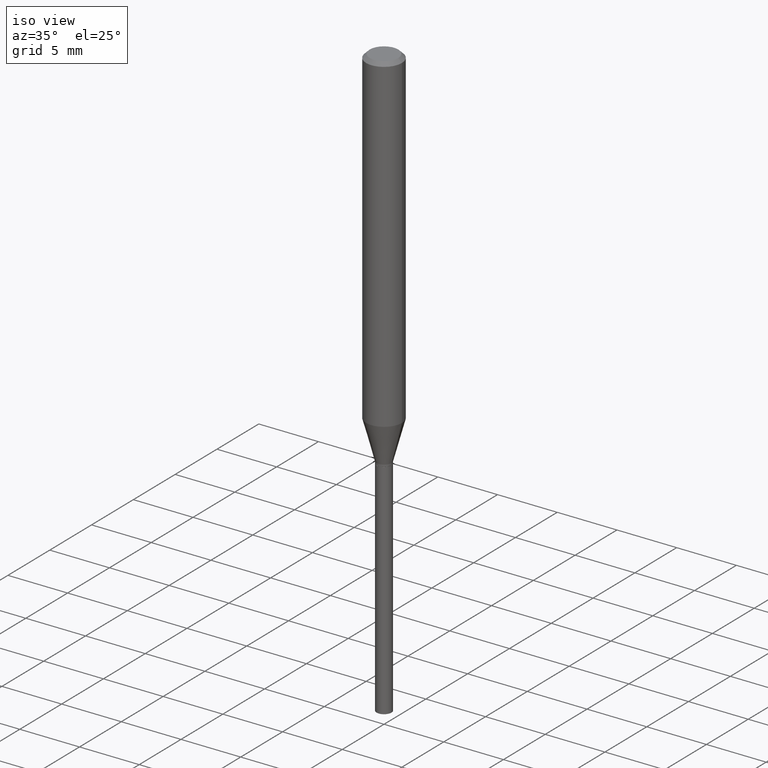
[diagram: clean part render]
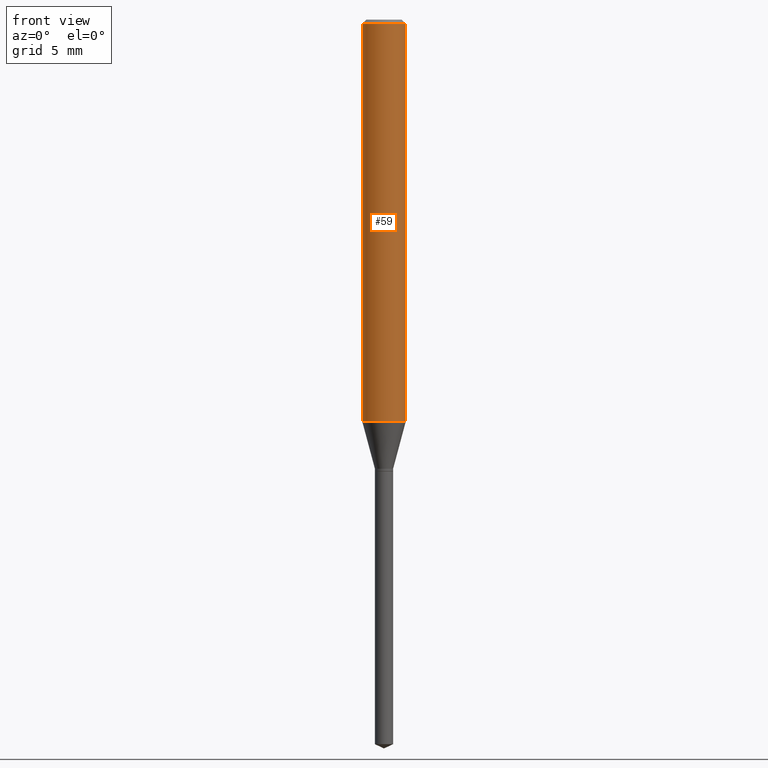
[diagram: tour spotlight — one face highlighted and labeled with its STEP entity id]
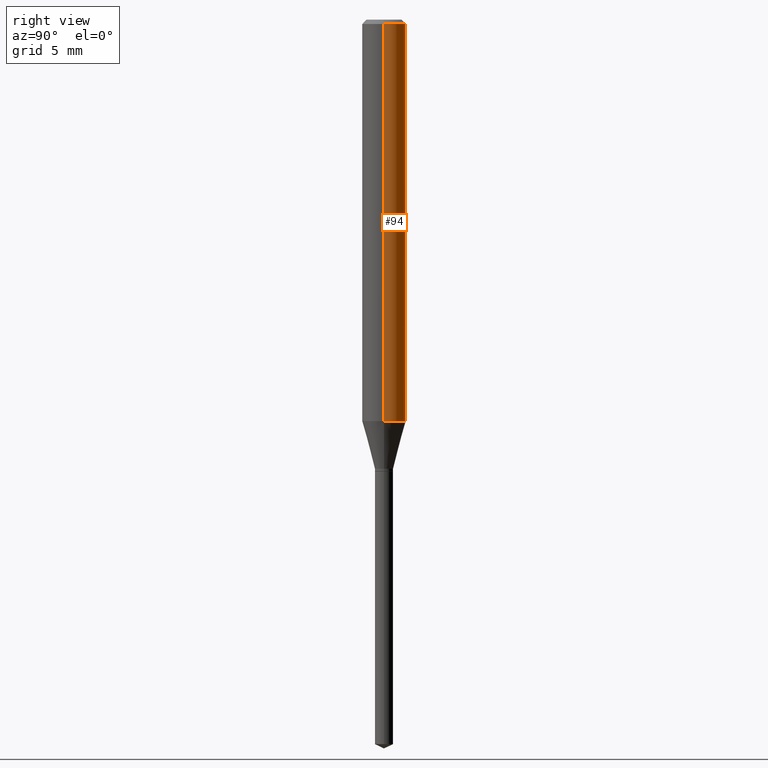
[diagram: tour spotlight — one face highlighted and labeled with its STEP entity id]
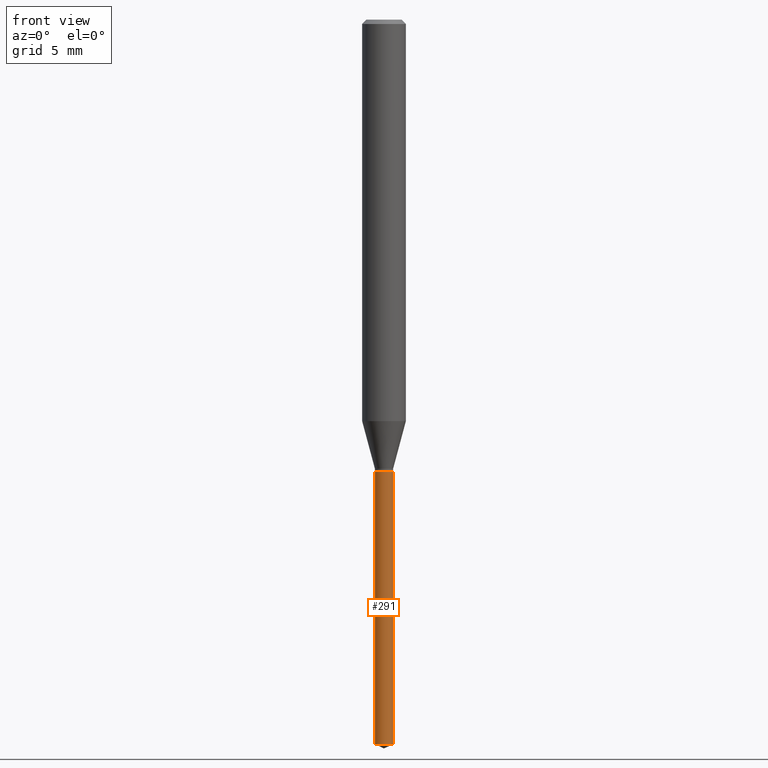
[diagram: tour spotlight — one face highlighted and labeled with its STEP entity id]
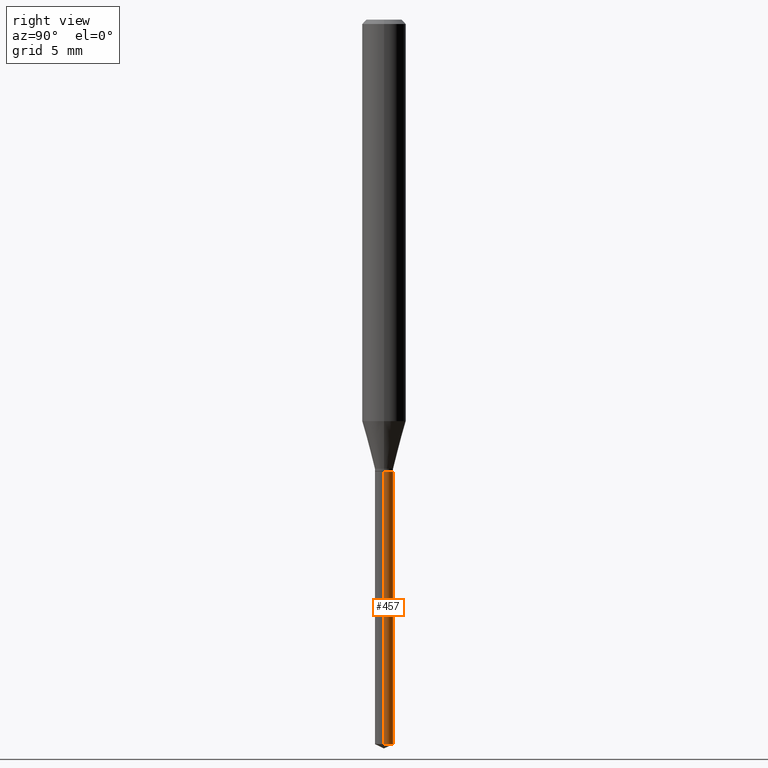
[diagram: tour spotlight — one face highlighted and labeled with its STEP entity id]
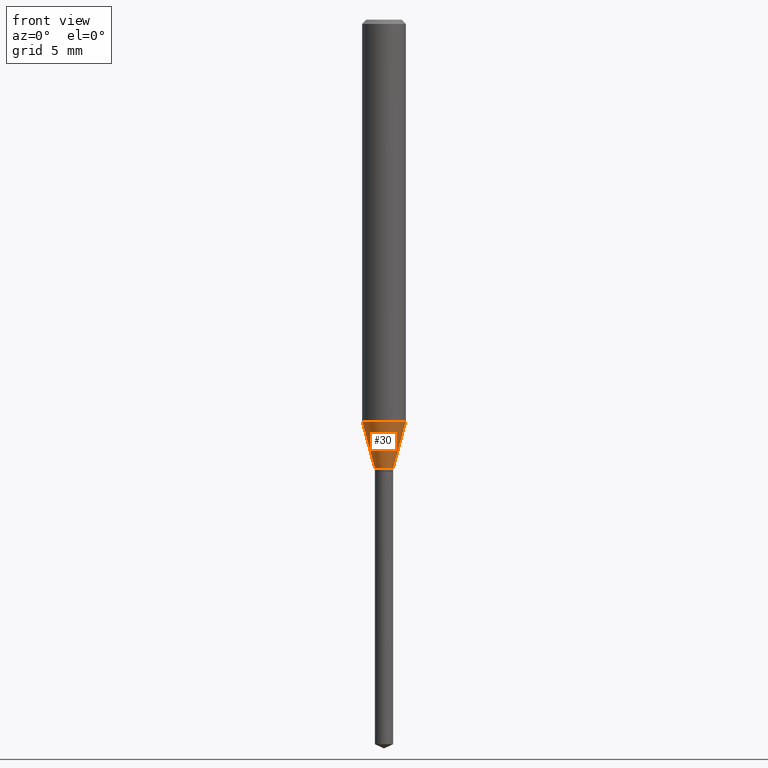
[diagram: tour spotlight — one face highlighted and labeled with its STEP entity id]
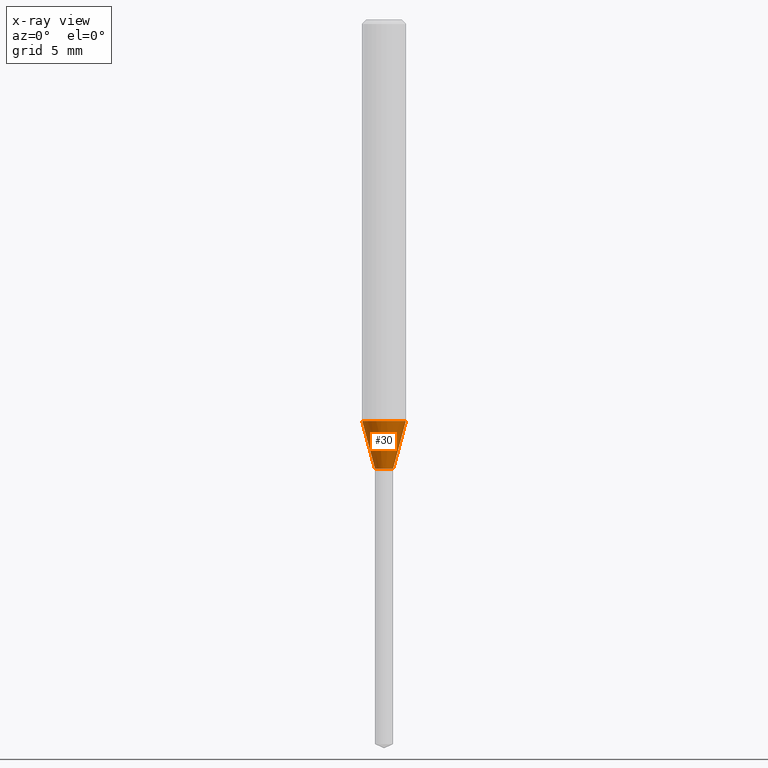
[diagram: x-ray of the same camera — body ghosted, this tour face saturated]
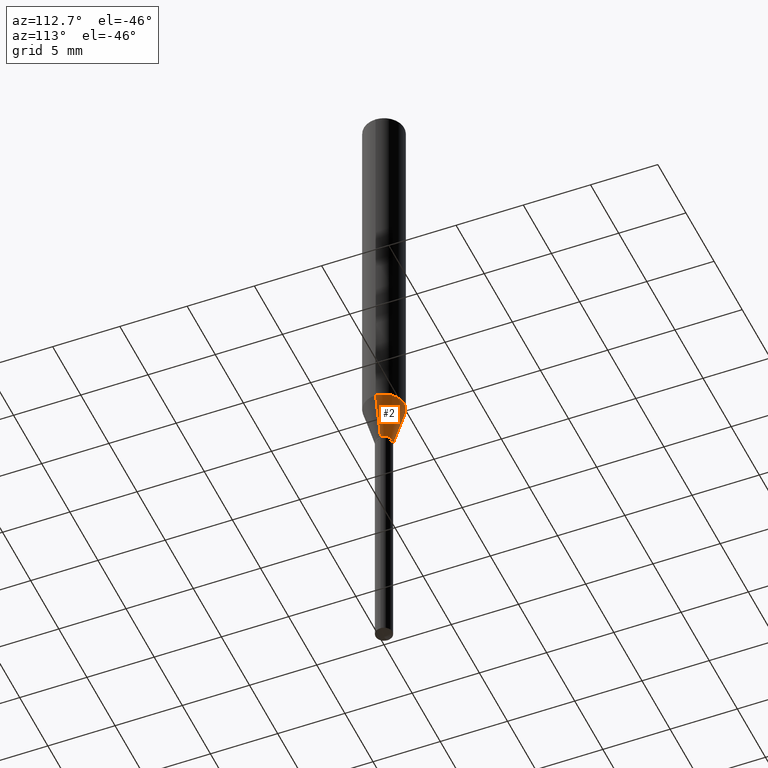
[diagram: tour spotlight — one face highlighted and labeled with its STEP entity id]
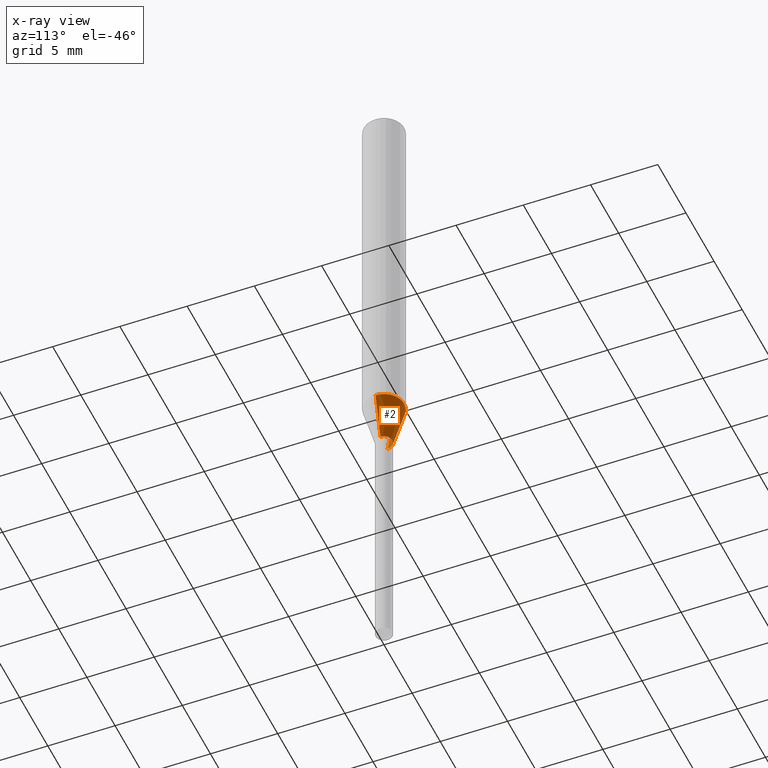
[diagram: x-ray of the same camera — body ghosted, this tour face saturated]
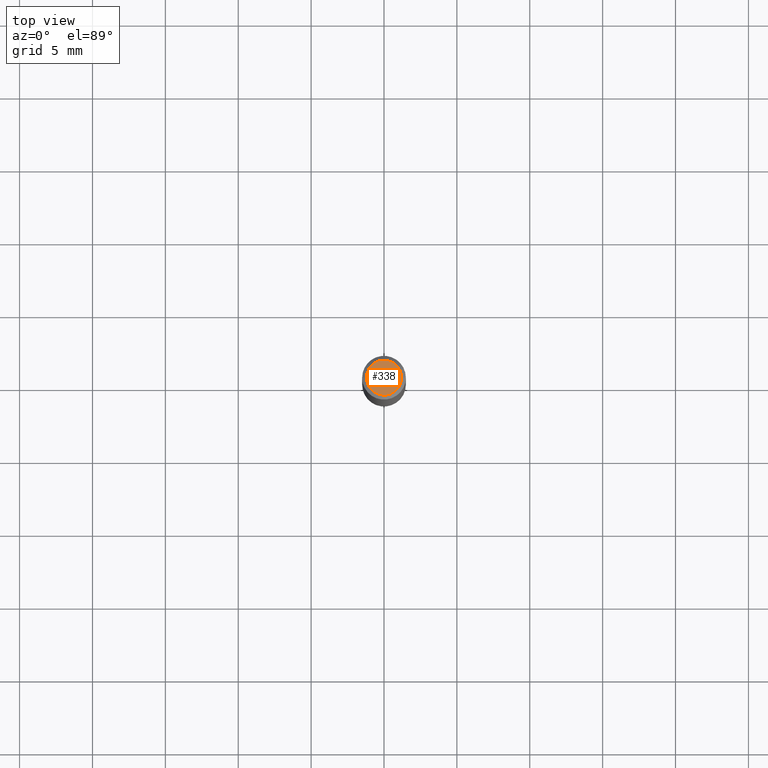
[diagram: tour spotlight — one face highlighted and labeled with its STEP entity id]
A machine part: a face-by-face anatomy tour. The part has 17 B-rep faces; the first image is the clean iso view, then the 7 largest visible faces are spotlighted one at a time (largest first), each with its STEP entity span.

Face 1 — front view, entity #59. In plain terms, the highlighted cylindrical surface (edge-blend (fillet) strip) has radius 1.4999 mm, axis along (-0, 0, 1).
Definition (entity closure, byte-faithful):
#27 = LINE ( 'NONE', #54, #118 ) ;
#28 = CIRCLE ( 'NONE', #329, 0.05905000000000013710 ) ;
#54 = CARTESIAN_POINT ( 'NONE',  ( 0.05905000000000006771, -4.123439461173745257E-16, 2.879382386107503723E-30 ) ) ;
#59 = ADVANCED_FACE ( 'NONE', ( #307 ), #434, .T. ) ;
#73 = CARTESIAN_POINT ( 'NONE',  ( -0.05905000000000000526, -1.494351323366933161E-15, -0.01181000000000007738 ) ) ;
#80 = CARTESIAN_POINT ( 'NONE',  ( 0.05905000000000013710, -4.198963169172184472E-15, -1.084530849679252063 ) ) ;
#82 = DIRECTION ( 'NONE',  ( -2.445468806185136597E-29, 3.491481338843145583E-15, 1.000000000000000000 ) ) ;
#90 = CARTESIAN_POINT ( 'NONE',  ( 0.000000000000000000, 0.000000000000000000, 0.000000000000000000 ) ) ;
#107 = VERTEX_POINT ( 'NONE', #468 ) ;
#112 = EDGE_CURVE ( 'NONE', #125, #107, #433, .T. ) ;
#113 = DIRECTION ( 'NONE',  ( 1.000000000000000000, -6.982962677686264344E-15, 0.000000000000000000 ) ) ;
#118 = VECTOR ( 'NONE', #365, 39.37007874015748143 ) ;
#125 = VERTEX_POINT ( 'NONE', #73 ) ;
#143 = ORIENTED_EDGE ( 'NONE', *, *, #112, .F. ) ;
#151 = VECTOR ( 'NONE', #359, 39.37007874015748143 ) ;
#152 = CARTESIAN_POINT ( 'NONE',  ( -0.05905000000000013710, -3.367043737588469664E-15, -1.084530849679252063 ) ) ;
#153 = CARTESIAN_POINT ( 'NONE',  ( 2.652186362236072778E-29, -3.786619223054809552E-15, -1.084530849679252063 ) ) ;
#156 = DIRECTION ( 'NONE',  ( -2.445468806185136597E-29, 3.491481338843145583E-15, 1.000000000000000000 ) ) ;
#164 = DIRECTION ( 'NONE',  ( -2.445468806185136597E-29, 3.491481338843145583E-15, 1.000000000000000000 ) ) ;
#176 = EDGE_CURVE ( 'NONE', #395, #125, #203, .T. ) ;
#184 = AXIS2_PLACEMENT_3D ( 'NONE', #90, #82, #423 ) ;
#203 = LINE ( 'NONE', #393, #151 ) ;
#231 = EDGE_CURVE ( 'NONE', #395, #411, #28, .T. ) ;
#266 = EDGE_CURVE ( 'NONE', #411, #107, #27, .T. ) ;
#280 = AXIS2_PLACEMENT_3D ( 'NONE', #353, #164, #402 ) ;
#307 = FACE_OUTER_BOUND ( 'NONE', #391, .T. ) ;
#329 = AXIS2_PLACEMENT_3D ( 'NONE', #153, #156, #113 ) ;
#340 = ORIENTED_EDGE ( 'NONE', *, *, #176, .F. ) ;
#353 = CARTESIAN_POINT ( 'NONE',  ( 2.888098660104665518E-31, -4.123439461173782112E-17, -0.01181000000000007738 ) ) ;
#359 = DIRECTION ( 'NONE',  ( -2.445468806185136877E-29, 3.491481338843145188E-15, 1.000000000000000000 ) ) ;
#365 = DIRECTION ( 'NONE',  ( -2.445468806185136877E-29, 3.491481338843145188E-15, 1.000000000000000000 ) ) ;
#391 = EDGE_LOOP ( 'NONE', ( #340, #486, #487, #143 ) ) ;
#393 = CARTESIAN_POINT ( 'NONE',  ( -0.05905000000000006771, 4.195754854663396409E-16, -2.904631170795525045E-30 ) ) ;
#395 = VERTEX_POINT ( 'NONE', #152 ) ;
#402 = DIRECTION ( 'NONE',  ( 1.000000000000000000, -6.982962677686267499E-15, 0.000000000000000000 ) ) ;
#411 = VERTEX_POINT ( 'NONE', #80 ) ;
#423 = DIRECTION ( 'NONE',  ( 1.000000000000000000, -6.982962677686266711E-15, 4.876176775795936353E-29 ) ) ;
#433 = CIRCLE ( 'NONE', #280, 0.05905000000000000526 ) ;
#434 = CYLINDRICAL_SURFACE ( 'NONE', #184, 0.05905000000000006771 ) ;
#468 = CARTESIAN_POINT ( 'NONE',  ( 0.05905000000000000526, -4.535783407291119586E-16, -0.01181000000000007738 ) ) ;
#486 = ORIENTED_EDGE ( 'NONE', *, *, #231, .T. ) ;
#487 = ORIENTED_EDGE ( 'NONE', *, *, #266, .T. ) ;

Face 2 — right view, entity #94. In plain terms, the highlighted cylindrical surface (edge-blend (fillet) strip) has radius 1.4999 mm, axis along (-0, 0, 1).
Definition (entity closure, byte-faithful):
#21 = AXIS2_PLACEMENT_3D ( 'NONE', #267, #229, #117 ) ;
#27 = LINE ( 'NONE', #54, #118 ) ;
#35 = EDGE_CURVE ( 'NONE', #411, #395, #413, .T. ) ;
#54 = CARTESIAN_POINT ( 'NONE',  ( 0.05905000000000006771, -4.123439461173745257E-16, 2.879382386107503723E-30 ) ) ;
#62 = ORIENTED_EDGE ( 'NONE', *, *, #35, .T. ) ;
#69 = ORIENTED_EDGE ( 'NONE', *, *, #404, .F. ) ;
#73 = CARTESIAN_POINT ( 'NONE',  ( -0.05905000000000000526, -1.494351323366933161E-15, -0.01181000000000007738 ) ) ;
#80 = CARTESIAN_POINT ( 'NONE',  ( 0.05905000000000013710, -4.198963169172184472E-15, -1.084530849679252063 ) ) ;
#94 = ADVANCED_FACE ( 'NONE', ( #437 ), #367, .T. ) ;
#107 = VERTEX_POINT ( 'NONE', #468 ) ;
#117 = DIRECTION ( 'NONE',  ( 1.000000000000000000, -6.982962677686267499E-15, 0.000000000000000000 ) ) ;
#118 = VECTOR ( 'NONE', #365, 39.37007874015748143 ) ;
#125 = VERTEX_POINT ( 'NONE', #73 ) ;
#150 = AXIS2_PLACEMENT_3D ( 'NONE', #397, #167, #193 ) ;
#151 = VECTOR ( 'NONE', #359, 39.37007874015748143 ) ;
#152 = CARTESIAN_POINT ( 'NONE',  ( -0.05905000000000013710, -3.367043737588469664E-15, -1.084530849679252063 ) ) ;
#167 = DIRECTION ( 'NONE',  ( -2.445468806185136597E-29, 3.491481338843145583E-15, 1.000000000000000000 ) ) ;
#176 = EDGE_CURVE ( 'NONE', #395, #125, #203, .T. ) ;
#183 = ORIENTED_EDGE ( 'NONE', *, *, #266, .F. ) ;
#193 = DIRECTION ( 'NONE',  ( 1.000000000000000000, -6.982962677686266711E-15, 4.876176775795936353E-29 ) ) ;
#203 = LINE ( 'NONE', #393, #151 ) ;
#223 = ORIENTED_EDGE ( 'NONE', *, *, #176, .T. ) ;
#226 = DIRECTION ( 'NONE',  ( 1.000000000000000000, -6.982962677686264344E-15, 0.000000000000000000 ) ) ;
#229 = DIRECTION ( 'NONE',  ( -2.445468806185136597E-29, 3.491481338843145583E-15, 1.000000000000000000 ) ) ;
#266 = EDGE_CURVE ( 'NONE', #411, #107, #27, .T. ) ;
#267 = CARTESIAN_POINT ( 'NONE',  ( 2.888098660104665518E-31, -4.123439461173782112E-17, -0.01181000000000007738 ) ) ;
#270 = DIRECTION ( 'NONE',  ( -2.445468806185136597E-29, 3.491481338843145583E-15, 1.000000000000000000 ) ) ;
#299 = AXIS2_PLACEMENT_3D ( 'NONE', #469, #270, #226 ) ;
#359 = DIRECTION ( 'NONE',  ( -2.445468806185136877E-29, 3.491481338843145188E-15, 1.000000000000000000 ) ) ;
#365 = DIRECTION ( 'NONE',  ( -2.445468806185136877E-29, 3.491481338843145188E-15, 1.000000000000000000 ) ) ;
#367 = CYLINDRICAL_SURFACE ( 'NONE', #150, 0.05905000000000006771 ) ;
#393 = CARTESIAN_POINT ( 'NONE',  ( -0.05905000000000006771, 4.195754854663396409E-16, -2.904631170795525045E-30 ) ) ;
#395 = VERTEX_POINT ( 'NONE', #152 ) ;
#397 = CARTESIAN_POINT ( 'NONE',  ( 0.000000000000000000, 0.000000000000000000, 0.000000000000000000 ) ) ;
#404 = EDGE_CURVE ( 'NONE', #107, #125, #465, .T. ) ;
#411 = VERTEX_POINT ( 'NONE', #80 ) ;
#413 = CIRCLE ( 'NONE', #299, 0.05905000000000013710 ) ;
#437 = FACE_OUTER_BOUND ( 'NONE', #452, .T. ) ;
#452 = EDGE_LOOP ( 'NONE', ( #62, #223, #69, #183 ) ) ;
#465 = CIRCLE ( 'NONE', #21, 0.05905000000000000526 ) ;
#468 = CARTESIAN_POINT ( 'NONE',  ( 0.05905000000000000526, -4.535783407291119586E-16, -0.01181000000000007738 ) ) ;
#469 = CARTESIAN_POINT ( 'NONE',  ( 2.652186362236072778E-29, -3.786619223054809552E-15, -1.084530849679252063 ) ) ;

Face 3 — front view, entity #291. In plain terms, the highlighted cylindrical surface (edge-blend (fillet) strip) has radius 0.6248 mm, axis along (-0, 0, 1).
Definition (entity closure, byte-faithful):
#1 = LINE ( 'NONE', #104, #142 ) ;
#8 = CARTESIAN_POINT ( 'NONE',  ( 0.02460000000000000381, -7.004710527013262258E-15, -1.957028831609387121 ) ) ;
#9 = CARTESIAN_POINT ( 'NONE',  ( -0.02460000000000000034, -5.372347796603134395E-15, -1.220499999999999696 ) ) ;
#25 = EDGE_CURVE ( 'NONE', #316, #189, #1, .T. ) ;
#44 = AXIS2_PLACEMENT_3D ( 'NONE', #406, #57, #485 ) ;
#49 = DIRECTION ( 'NONE',  ( -2.445468806185136877E-29, 3.491481338843145188E-15, 1.000000000000000000 ) ) ;
#57 = DIRECTION ( 'NONE',  ( -2.445468806185136597E-29, 3.491481338843145583E-15, 1.000000000000000000 ) ) ;
#63 = AXIS2_PLACEMENT_3D ( 'NONE', #429, #237, #384 ) ;
#64 = EDGE_CURVE ( 'NONE', #316, #342, #159, .T. ) ;
#83 = ORIENTED_EDGE ( 'NONE', *, *, #310, .T. ) ;
#97 = CYLINDRICAL_SURFACE ( 'NONE', #44, 0.02460000000000000034 ) ;
#104 = CARTESIAN_POINT ( 'NONE',  ( -0.02460000000000000034, -4.086559461061073911E-15, -1.220499999999999918 ) ) ;
#111 = CARTESIAN_POINT ( 'NONE',  ( 0.02460000000000000034, -4.433133855929140501E-15, -1.220499999999999696 ) ) ;
#122 = ORIENTED_EDGE ( 'NONE', *, *, #64, .T. ) ;
#123 = CARTESIAN_POINT ( 'NONE',  ( 2.984694677948958351E-29, -4.261352974058058239E-15, -1.220499999999999696 ) ) ;
#124 = EDGE_CURVE ( 'NONE', #189, #355, #129, .T. ) ;
#129 = CIRCLE ( 'NONE', #473, 0.02460000000000000034 ) ;
#133 = FACE_OUTER_BOUND ( 'NONE', #285, .T. ) ;
#140 = LINE ( 'NONE', #252, #421 ) ;
#142 = VECTOR ( 'NONE', #257, 39.37007874015748143 ) ;
#159 = CIRCLE ( 'NONE', #63, 0.02460000000000000034 ) ;
#189 = VERTEX_POINT ( 'NONE', #9 ) ;
#208 = CARTESIAN_POINT ( 'NONE',  ( -0.02460000000000000381, -6.658136132145194879E-15, -1.957028831609387121 ) ) ;
#222 = ORIENTED_EDGE ( 'NONE', *, *, #25, .F. ) ;
#237 = DIRECTION ( 'NONE',  ( -2.445468806185136597E-29, 3.491481338843145583E-15, 1.000000000000000000 ) ) ;
#252 = CARTESIAN_POINT ( 'NONE',  ( 0.02460000000000000034, -4.433133855929141290E-15, -1.220499999999999918 ) ) ;
#257 = DIRECTION ( 'NONE',  ( -2.445468806185136877E-29, 3.491481338843145188E-15, 1.000000000000000000 ) ) ;
#273 = DIRECTION ( 'NONE',  ( -2.445468806185136597E-29, 3.491481338843145583E-15, 1.000000000000000000 ) ) ;
#285 = EDGE_LOOP ( 'NONE', ( #222, #122, #83, #330 ) ) ;
#291 = ADVANCED_FACE ( 'NONE', ( #133 ), #97, .T. ) ;
#310 = EDGE_CURVE ( 'NONE', #342, #355, #140, .T. ) ;
#316 = VERTEX_POINT ( 'NONE', #208 ) ;
#330 = ORIENTED_EDGE ( 'NONE', *, *, #124, .F. ) ;
#342 = VERTEX_POINT ( 'NONE', #8 ) ;
#355 = VERTEX_POINT ( 'NONE', #111 ) ;
#357 = DIRECTION ( 'NONE',  ( 1.000000000000000000, -6.982962677686261977E-15, 0.000000000000000000 ) ) ;
#384 = DIRECTION ( 'NONE',  ( 1.000000000000000000, -6.982962677686261977E-15, 0.000000000000000000 ) ) ;
#406 = CARTESIAN_POINT ( 'NONE',  ( 2.984694677948958911E-29, -4.261352974058059028E-15, -1.220499999999999918 ) ) ;
#421 = VECTOR ( 'NONE', #49, 39.37007874015748143 ) ;
#429 = CARTESIAN_POINT ( 'NONE',  ( 4.785852960505700235E-29, -6.832929645142179996E-15, -1.957028831609387121 ) ) ;
#473 = AXIS2_PLACEMENT_3D ( 'NONE', #123, #273, #357 ) ;
#485 = DIRECTION ( 'NONE',  ( 1.000000000000000000, -6.982962677686281699E-15, 0.000000000000000000 ) ) ;

Face 4 — right view, entity #457. In plain terms, the highlighted cylindrical surface (edge-blend (fillet) strip) has radius 0.6248 mm, axis along (-0, 0, 1).
Definition (entity closure, byte-faithful):
#1 = LINE ( 'NONE', #104, #142 ) ;
#8 = CARTESIAN_POINT ( 'NONE',  ( 0.02460000000000000381, -7.004710527013262258E-15, -1.957028831609387121 ) ) ;
#9 = CARTESIAN_POINT ( 'NONE',  ( -0.02460000000000000034, -5.372347796603134395E-15, -1.220499999999999696 ) ) ;
#25 = EDGE_CURVE ( 'NONE', #316, #189, #1, .T. ) ;
#49 = DIRECTION ( 'NONE',  ( -2.445468806185136877E-29, 3.491481338843145188E-15, 1.000000000000000000 ) ) ;
#65 = CIRCLE ( 'NONE', #88, 0.02460000000000000034 ) ;
#88 = AXIS2_PLACEMENT_3D ( 'NONE', #315, #269, #311 ) ;
#104 = CARTESIAN_POINT ( 'NONE',  ( -0.02460000000000000034, -4.086559461061073911E-15, -1.220499999999999918 ) ) ;
#111 = CARTESIAN_POINT ( 'NONE',  ( 0.02460000000000000034, -4.433133855929140501E-15, -1.220499999999999696 ) ) ;
#132 = DIRECTION ( 'NONE',  ( -2.445468806185136597E-29, 3.491481338843145583E-15, 1.000000000000000000 ) ) ;
#140 = LINE ( 'NONE', #252, #421 ) ;
#142 = VECTOR ( 'NONE', #257, 39.37007874015748143 ) ;
#146 = ORIENTED_EDGE ( 'NONE', *, *, #25, .T. ) ;
#161 = CIRCLE ( 'NONE', #442, 0.02460000000000000034 ) ;
#172 = CARTESIAN_POINT ( 'NONE',  ( 2.984694677948958351E-29, -4.261352974058058239E-15, -1.220499999999999696 ) ) ;
#189 = VERTEX_POINT ( 'NONE', #9 ) ;
#208 = CARTESIAN_POINT ( 'NONE',  ( -0.02460000000000000381, -6.658136132145194879E-15, -1.957028831609387121 ) ) ;
#245 = AXIS2_PLACEMENT_3D ( 'NONE', #361, #368, #325 ) ;
#247 = EDGE_CURVE ( 'NONE', #342, #316, #65, .T. ) ;
#252 = CARTESIAN_POINT ( 'NONE',  ( 0.02460000000000000034, -4.433133855929141290E-15, -1.220499999999999918 ) ) ;
#256 = ORIENTED_EDGE ( 'NONE', *, *, #247, .T. ) ;
#257 = DIRECTION ( 'NONE',  ( -2.445468806185136877E-29, 3.491481338843145188E-15, 1.000000000000000000 ) ) ;
#269 = DIRECTION ( 'NONE',  ( -2.445468806185136597E-29, 3.491481338843145583E-15, 1.000000000000000000 ) ) ;
#274 = ORIENTED_EDGE ( 'NONE', *, *, #310, .F. ) ;
#283 = DIRECTION ( 'NONE',  ( 1.000000000000000000, -6.982962677686261977E-15, 0.000000000000000000 ) ) ;
#286 = CYLINDRICAL_SURFACE ( 'NONE', #245, 0.02460000000000000034 ) ;
#303 = EDGE_LOOP ( 'NONE', ( #256, #146, #489, #274 ) ) ;
#310 = EDGE_CURVE ( 'NONE', #342, #355, #140, .T. ) ;
#311 = DIRECTION ( 'NONE',  ( 1.000000000000000000, -6.982962677686261977E-15, 0.000000000000000000 ) ) ;
#315 = CARTESIAN_POINT ( 'NONE',  ( 4.785852960505700235E-29, -6.832929645142179996E-15, -1.957028831609387121 ) ) ;
#316 = VERTEX_POINT ( 'NONE', #208 ) ;
#325 = DIRECTION ( 'NONE',  ( 1.000000000000000000, -6.982962677686281699E-15, 0.000000000000000000 ) ) ;
#342 = VERTEX_POINT ( 'NONE', #8 ) ;
#355 = VERTEX_POINT ( 'NONE', #111 ) ;
#361 = CARTESIAN_POINT ( 'NONE',  ( 2.984694677948958911E-29, -4.261352974058059028E-15, -1.220499999999999918 ) ) ;
#368 = DIRECTION ( 'NONE',  ( -2.445468806185136597E-29, 3.491481338843145583E-15, 1.000000000000000000 ) ) ;
#421 = VECTOR ( 'NONE', #49, 39.37007874015748143 ) ;
#442 = AXIS2_PLACEMENT_3D ( 'NONE', #172, #132, #283 ) ;
#444 = FACE_OUTER_BOUND ( 'NONE', #303, .T. ) ;
#457 = ADVANCED_FACE ( 'NONE', ( #444 ), #286, .T. ) ;
#489 = ORIENTED_EDGE ( 'NONE', *, *, #490, .F. ) ;
#490 = EDGE_CURVE ( 'NONE', #355, #189, #161, .T. ) ;

Face 5 — front view, entity #30. An x-ray twin of the same camera follows (body ghosted, this face saturated) — the face is partly hidden behind the body. In plain terms, the highlighted conical surface has half-angle 15 deg.
Definition (entity closure, byte-faithful):
#28 = CIRCLE ( 'NONE', #329, 0.05905000000000013710 ) ;
#29 = VERTEX_POINT ( 'NONE', #34 ) ;
#30 = ADVANCED_FACE ( 'NONE', ( #187 ), #95, .T. ) ;
#33 = ORIENTED_EDGE ( 'NONE', *, *, #100, .F. ) ;
#34 = CARTESIAN_POINT ( 'NONE',  ( 0.02460000000000001422, -4.407296894021703037E-15, -1.213100000000000067 ) ) ;
#43 = DIRECTION ( 'NONE',  ( -0.2588190451025213501, 5.211531920934551042E-15, 0.9659258262890682012 ) ) ;
#46 = ORIENTED_EDGE ( 'NONE', *, *, #374, .T. ) ;
#58 = VECTOR ( 'NONE', #385, 39.37007874015747433 ) ;
#79 = ORIENTED_EDGE ( 'NONE', *, *, #231, .F. ) ;
#80 = CARTESIAN_POINT ( 'NONE',  ( 0.05905000000000013710, -4.198963169172184472E-15, -1.084530849679252063 ) ) ;
#81 = CARTESIAN_POINT ( 'NONE',  ( -0.02460000000000001422, -4.060722499153635658E-15, -1.213100000000000067 ) ) ;
#91 = LINE ( 'NONE', #81, #372 ) ;
#95 = CONICAL_SURFACE ( 'NONE', #379, 0.02460000000000001422, 0.2617993877991500740 ) ;
#100 = EDGE_CURVE ( 'NONE', #410, #395, #91, .T. ) ;
#113 = DIRECTION ( 'NONE',  ( 1.000000000000000000, -6.982962677686264344E-15, 0.000000000000000000 ) ) ;
#116 = DIRECTION ( 'NONE',  ( 1.000000000000000000, -6.982962677686277755E-15, 0.000000000000000000 ) ) ;
#121 = DIRECTION ( 'NONE',  ( -2.445468806185136597E-29, 3.491481338843145583E-15, 1.000000000000000000 ) ) ;
#137 = ORIENTED_EDGE ( 'NONE', *, *, #348, .T. ) ;
#152 = CARTESIAN_POINT ( 'NONE',  ( -0.05905000000000013710, -3.367043737588469664E-15, -1.084530849679252063 ) ) ;
#153 = CARTESIAN_POINT ( 'NONE',  ( 2.652186362236072778E-29, -3.786619223054809552E-15, -1.084530849679252063 ) ) ;
#156 = DIRECTION ( 'NONE',  ( -2.445468806185136597E-29, 3.491481338843145583E-15, 1.000000000000000000 ) ) ;
#170 = AXIS2_PLACEMENT_3D ( 'NONE', #233, #419, #204 ) ;
#185 = CIRCLE ( 'NONE', #170, 0.02460000000000001422 ) ;
#187 = FACE_OUTER_BOUND ( 'NONE', #446, .T. ) ;
#204 = DIRECTION ( 'NONE',  ( 1.000000000000000000, -6.982962677686277755E-15, 0.000000000000000000 ) ) ;
#231 = EDGE_CURVE ( 'NONE', #395, #411, #28, .T. ) ;
#233 = CARTESIAN_POINT ( 'NONE',  ( 2.966598208783189597E-29, -4.235516012150619986E-15, -1.213100000000000067 ) ) ;
#265 = LINE ( 'NONE', #416, #58 ) ;
#329 = AXIS2_PLACEMENT_3D ( 'NONE', #153, #156, #113 ) ;
#348 = EDGE_CURVE ( 'NONE', #410, #29, #185, .T. ) ;
#352 = CARTESIAN_POINT ( 'NONE',  ( -0.02460000000000001422, -4.072768109772643638E-15, -1.213100000000000067 ) ) ;
#372 = VECTOR ( 'NONE', #43, 39.37007874015747433 ) ;
#374 = EDGE_CURVE ( 'NONE', #29, #411, #265, .T. ) ;
#379 = AXIS2_PLACEMENT_3D ( 'NONE', #394, #121, #116 ) ;
#385 = DIRECTION ( 'NONE',  ( 0.2588190451025213501, 1.565188264969621968E-15, 0.9659258262890682012 ) ) ;
#394 = CARTESIAN_POINT ( 'NONE',  ( 2.966598208783189597E-29, -4.235516012150619986E-15, -1.213100000000000067 ) ) ;
#395 = VERTEX_POINT ( 'NONE', #152 ) ;
#410 = VERTEX_POINT ( 'NONE', #352 ) ;
#411 = VERTEX_POINT ( 'NONE', #80 ) ;
#416 = CARTESIAN_POINT ( 'NONE',  ( 0.02460000000000001422, -4.407296894021703037E-15, -1.213100000000000067 ) ) ;
#419 = DIRECTION ( 'NONE',  ( -2.445468806185136597E-29, 3.491481338843145583E-15, 1.000000000000000000 ) ) ;
#446 = EDGE_LOOP ( 'NONE', ( #33, #137, #46, #79 ) ) ;

Face 6 — auxiliary view, entity #2. An x-ray twin of the same camera follows (body ghosted, this face saturated) — the face is partly hidden behind the body. In plain terms, the highlighted conical surface has half-angle 15 deg.
Definition (entity closure, byte-faithful):
#2 = ADVANCED_FACE ( 'NONE', ( #60 ), #220, .T. ) ;
#18 = DIRECTION ( 'NONE',  ( 1.000000000000000000, -6.982962677686277755E-15, 0.000000000000000000 ) ) ;
#29 = VERTEX_POINT ( 'NONE', #34 ) ;
#31 = DIRECTION ( 'NONE',  ( 1.000000000000000000, -6.982962677686277755E-15, 0.000000000000000000 ) ) ;
#34 = CARTESIAN_POINT ( 'NONE',  ( 0.02460000000000001422, -4.407296894021703037E-15, -1.213100000000000067 ) ) ;
#35 = EDGE_CURVE ( 'NONE', #411, #395, #413, .T. ) ;
#43 = DIRECTION ( 'NONE',  ( -0.2588190451025213501, 5.211531920934551042E-15, 0.9659258262890682012 ) ) ;
#51 = CIRCLE ( 'NONE', #474, 0.02460000000000001422 ) ;
#58 = VECTOR ( 'NONE', #385, 39.37007874015747433 ) ;
#60 = FACE_OUTER_BOUND ( 'NONE', #349, .T. ) ;
#70 = AXIS2_PLACEMENT_3D ( 'NONE', #376, #261, #31 ) ;
#80 = CARTESIAN_POINT ( 'NONE',  ( 0.05905000000000013710, -4.198963169172184472E-15, -1.084530849679252063 ) ) ;
#81 = CARTESIAN_POINT ( 'NONE',  ( -0.02460000000000001422, -4.060722499153635658E-15, -1.213100000000000067 ) ) ;
#91 = LINE ( 'NONE', #81, #372 ) ;
#100 = EDGE_CURVE ( 'NONE', #410, #395, #91, .T. ) ;
#152 = CARTESIAN_POINT ( 'NONE',  ( -0.05905000000000013710, -3.367043737588469664E-15, -1.084530849679252063 ) ) ;
#182 = EDGE_CURVE ( 'NONE', #29, #410, #51, .T. ) ;
#220 = CONICAL_SURFACE ( 'NONE', #70, 0.02460000000000001422, 0.2617993877991500740 ) ;
#226 = DIRECTION ( 'NONE',  ( 1.000000000000000000, -6.982962677686264344E-15, 0.000000000000000000 ) ) ;
#249 = ORIENTED_EDGE ( 'NONE', *, *, #182, .T. ) ;
#258 = ORIENTED_EDGE ( 'NONE', *, *, #100, .T. ) ;
#261 = DIRECTION ( 'NONE',  ( -2.445468806185136597E-29, 3.491481338843145583E-15, 1.000000000000000000 ) ) ;
#265 = LINE ( 'NONE', #416, #58 ) ;
#270 = DIRECTION ( 'NONE',  ( -2.445468806185136597E-29, 3.491481338843145583E-15, 1.000000000000000000 ) ) ;
#299 = AXIS2_PLACEMENT_3D ( 'NONE', #469, #270, #226 ) ;
#349 = EDGE_LOOP ( 'NONE', ( #249, #258, #484, #451 ) ) ;
#352 = CARTESIAN_POINT ( 'NONE',  ( -0.02460000000000001422, -4.072768109772643638E-15, -1.213100000000000067 ) ) ;
#372 = VECTOR ( 'NONE', #43, 39.37007874015747433 ) ;
#374 = EDGE_CURVE ( 'NONE', #29, #411, #265, .T. ) ;
#376 = CARTESIAN_POINT ( 'NONE',  ( 2.966598208783189597E-29, -4.235516012150619986E-15, -1.213100000000000067 ) ) ;
#385 = DIRECTION ( 'NONE',  ( 0.2588190451025213501, 1.565188264969621968E-15, 0.9659258262890682012 ) ) ;
#395 = VERTEX_POINT ( 'NONE', #152 ) ;
#401 = CARTESIAN_POINT ( 'NONE',  ( 2.966598208783189597E-29, -4.235516012150619986E-15, -1.213100000000000067 ) ) ;
#410 = VERTEX_POINT ( 'NONE', #352 ) ;
#411 = VERTEX_POINT ( 'NONE', #80 ) ;
#413 = CIRCLE ( 'NONE', #299, 0.05905000000000013710 ) ;
#416 = CARTESIAN_POINT ( 'NONE',  ( 0.02460000000000001422, -4.407296894021703037E-15, -1.213100000000000067 ) ) ;
#436 = DIRECTION ( 'NONE',  ( -2.445468806185136597E-29, 3.491481338843145583E-15, 1.000000000000000000 ) ) ;
#451 = ORIENTED_EDGE ( 'NONE', *, *, #374, .F. ) ;
#469 = CARTESIAN_POINT ( 'NONE',  ( 2.652186362236072778E-29, -3.786619223054809552E-15, -1.084530849679252063 ) ) ;
#474 = AXIS2_PLACEMENT_3D ( 'NONE', #401, #436, #18 ) ;
#484 = ORIENTED_EDGE ( 'NONE', *, *, #35, .F. ) ;

Face 7 — top view, entity #338. In plain terms, the highlighted planar face has unit normal (0, -0, -1).
Definition (entity closure, byte-faithful):
#7 = DIRECTION ( 'NONE',  ( 1.000000000000000000, -6.982962677686266711E-15, 4.876185090822587894E-29 ) ) ;
#12 = CARTESIAN_POINT ( 'NONE',  ( -0.04724000000000000421, 3.504923541997677355E-16, -3.380025165670481712E-19 ) ) ;
#13 = PLANE ( 'NONE',  #227 ) ;
#42 = CARTESIAN_POINT ( 'NONE',  ( 0.04724000000000000421, -3.852183633974369838E-16, -3.380025165621689721E-19 ) ) ;
#74 = EDGE_CURVE ( 'NONE', #206, #105, #481, .T. ) ;
#76 = EDGE_LOOP ( 'NONE', ( #387, #319 ) ) ;
#105 = VERTEX_POINT ( 'NONE', #42 ) ;
#135 = AXIS2_PLACEMENT_3D ( 'NONE', #191, #345, #7 ) ;
#191 = CARTESIAN_POINT ( 'NONE',  ( 8.265746106709734507E-48, -1.180129479067563789E-33, -3.380025165646692144E-19 ) ) ;
#206 = VERTEX_POINT ( 'NONE', #12 ) ;
#207 = CARTESIAN_POINT ( 'NONE',  ( 8.265746106709734507E-48, -1.180129479067563789E-33, -3.380025165646692144E-19 ) ) ;
#227 = AXIS2_PLACEMENT_3D ( 'NONE', #350, #304, #400 ) ;
#250 = DIRECTION ( 'NONE',  ( 1.000000000000000000, -6.982962677686266711E-15, 4.876185090822587894E-29 ) ) ;
#275 = FACE_OUTER_BOUND ( 'NONE', #76, .T. ) ;
#292 = AXIS2_PLACEMENT_3D ( 'NONE', #207, #483, #250 ) ;
#304 = DIRECTION ( 'NONE',  ( 2.438088387897960049E-29, -3.491481338843145188E-15, -1.000000000000000000 ) ) ;
#319 = ORIENTED_EDGE ( 'NONE', *, *, #440, .T. ) ;
#323 = CIRCLE ( 'NONE', #292, 0.04724000000000000421 ) ;
#338 = ADVANCED_FACE ( 'NONE', ( #275 ), #13, .F. ) ;
#345 = DIRECTION ( 'NONE',  ( -2.445468806185136597E-29, 3.491481338843145583E-15, 1.000000000000000000 ) ) ;
#350 = CARTESIAN_POINT ( 'NONE',  ( 4.132873053354867254E-48, -5.900647395337818946E-34, -1.690012582823346072E-19 ) ) ;
#387 = ORIENTED_EDGE ( 'NONE', *, *, #74, .T. ) ;
#400 = DIRECTION ( 'NONE',  ( -1.000000000000000000, 6.982962677686265922E-15, -4.876176775795935793E-29 ) ) ;
#440 = EDGE_CURVE ( 'NONE', #105, #206, #323, .T. ) ;
#481 = CIRCLE ( 'NONE', #135, 0.04724000000000000421 ) ;
#483 = DIRECTION ( 'NONE',  ( -2.445468806185136597E-29, 3.491481338843145583E-15, 1.000000000000000000 ) ) ;